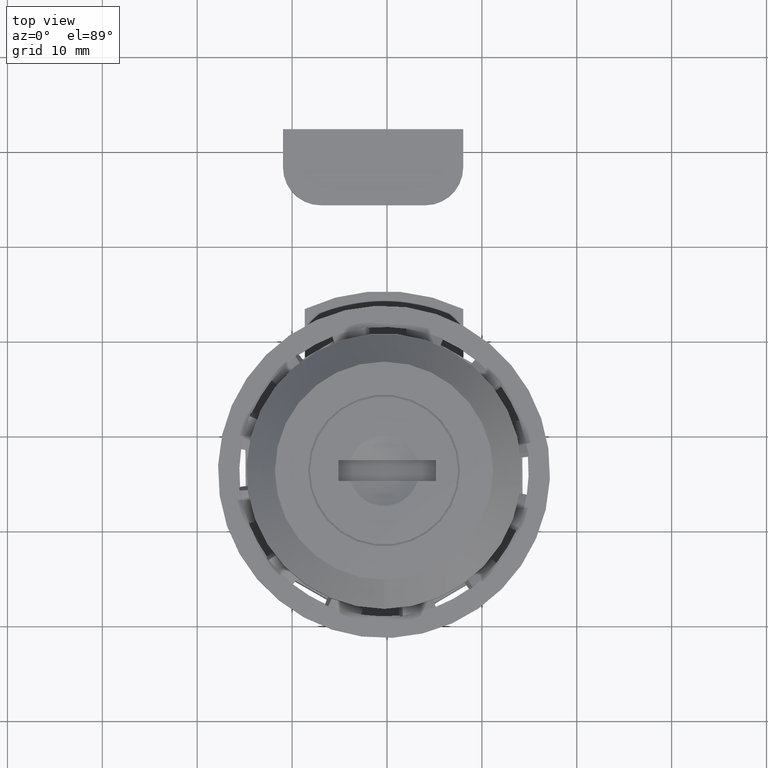
[diagram: clean part render]
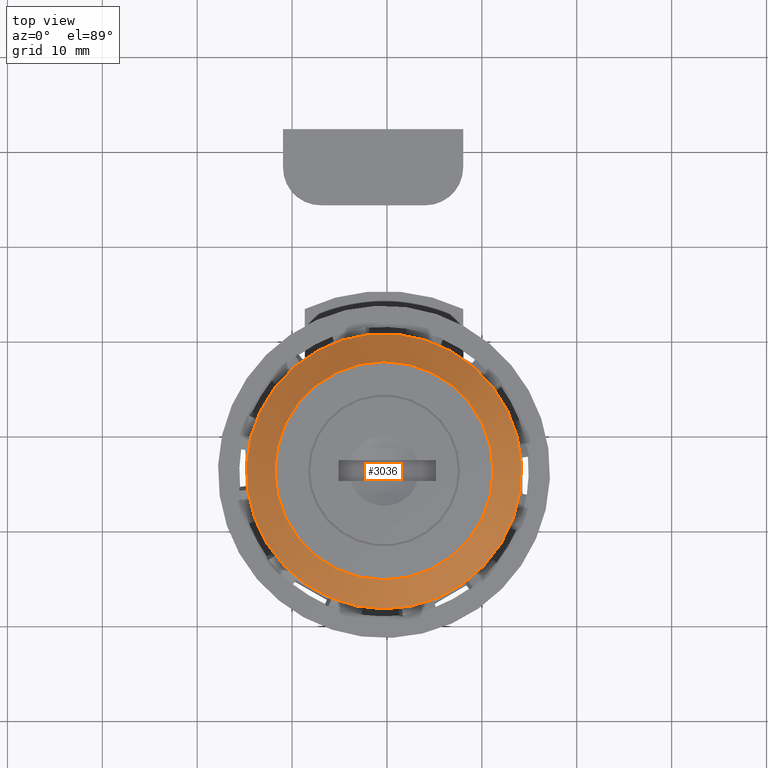
[diagram: same view with one face highlighted and labeled with its STEP entity id]
A machine part, top view. The second image highlights one B-rep face of the part: STEP entity #3036.
In plain terms, the highlighted conical surface has half-angle 45 deg.
Its self-contained STEP definition (entity closure, byte-faithful):
#176=FACE_BOUND('',#456,.T.);
#222=CONICAL_SURFACE('',#3231,13.,0.785398163397448);
#278=FACE_OUTER_BOUND('',#455,.T.);
#455=EDGE_LOOP('',(#2147));
#456=EDGE_LOOP('',(#2148));
#630=CIRCLE('',#3230,11.5);
#631=CIRCLE('',#3232,14.5);
#1309=VERTEX_POINT('',#4241);
#1310=VERTEX_POINT('',#4244);
#1635=EDGE_CURVE('',#1309,#1309,#630,.T.);
#1636=EDGE_CURVE('',#1310,#1310,#631,.T.);
#2147=ORIENTED_EDGE('',*,*,#1635,.T.);
#2148=ORIENTED_EDGE('',*,*,#1636,.F.);
#3036=ADVANCED_FACE('',(#278,#176),#222,.T.);
#3230=AXIS2_PLACEMENT_3D('',#4242,#3525,#3526);
#3231=AXIS2_PLACEMENT_3D('',#4243,#3527,#3528);
#3232=AXIS2_PLACEMENT_3D('',#4245,#3529,#3530);
#3525=DIRECTION('center_axis',(0.,1.17553026136781E-16,-1.));
#3526=DIRECTION('ref_axis',(1.,0.,0.));
#3527=DIRECTION('center_axis',(0.,1.17553026136781E-16,-1.));
#3528=DIRECTION('ref_axis',(0.,1.,1.17553026136781E-16));
#3529=DIRECTION('center_axis',(0.,1.17553026136781E-16,-1.));
#3530=DIRECTION('ref_axis',(1.,0.,0.));
#4241=CARTESIAN_POINT('',(-1.40834381901946E-15,-11.5,0.));
#4242=CARTESIAN_POINT('Origin',(0.,0.,0.));
#4243=CARTESIAN_POINT('Origin',(0.,1.76329539205172E-16,-1.5));
#4244=CARTESIAN_POINT('',(-1.77573785876366E-15,-14.5,-3.));
#4245=CARTESIAN_POINT('Origin',(0.,3.52659078410344E-16,-3.));